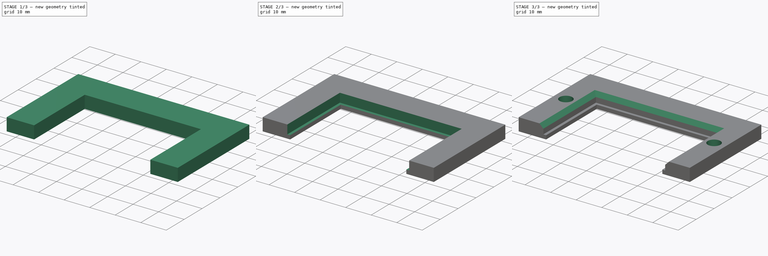
[diagram: build sequence overview — one tinted view per stage of 3, left to right]
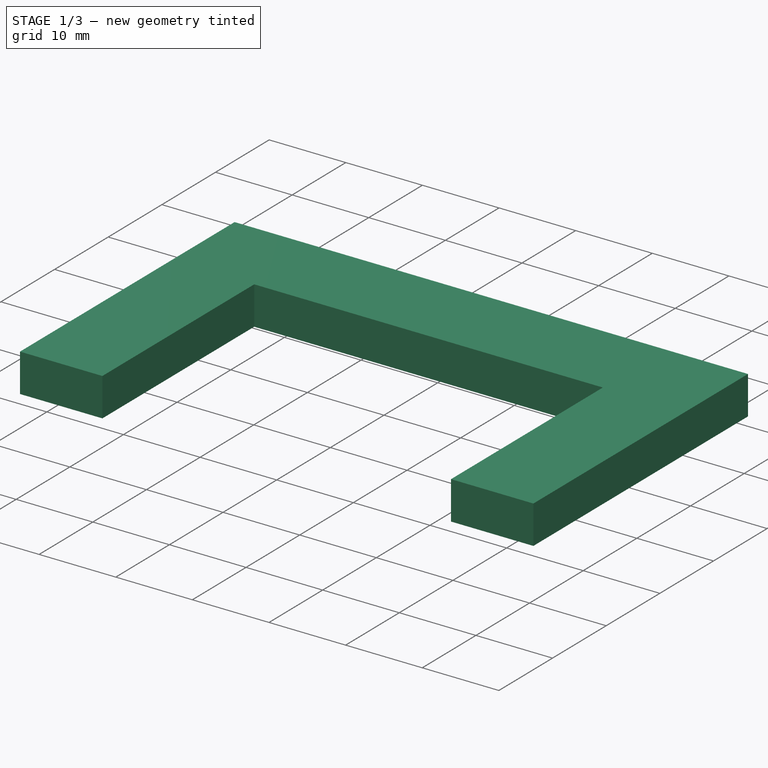
[diagram: stage 1 of 3 — iso view after this stage's code; geometry added in this stage tinted green]
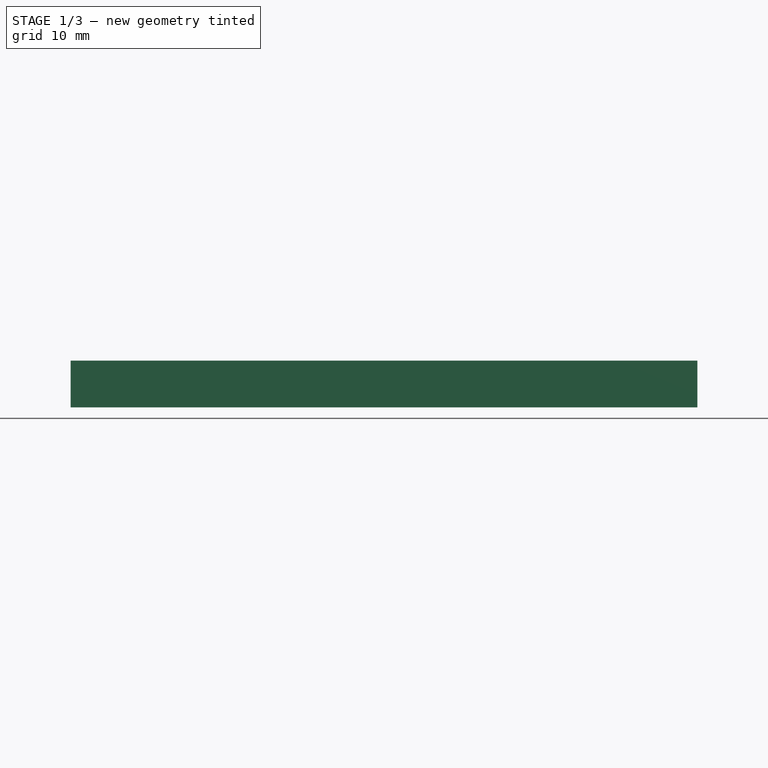
[diagram: stage 1 of 3 — front view after this stage's code; geometry added in this stage tinted green]
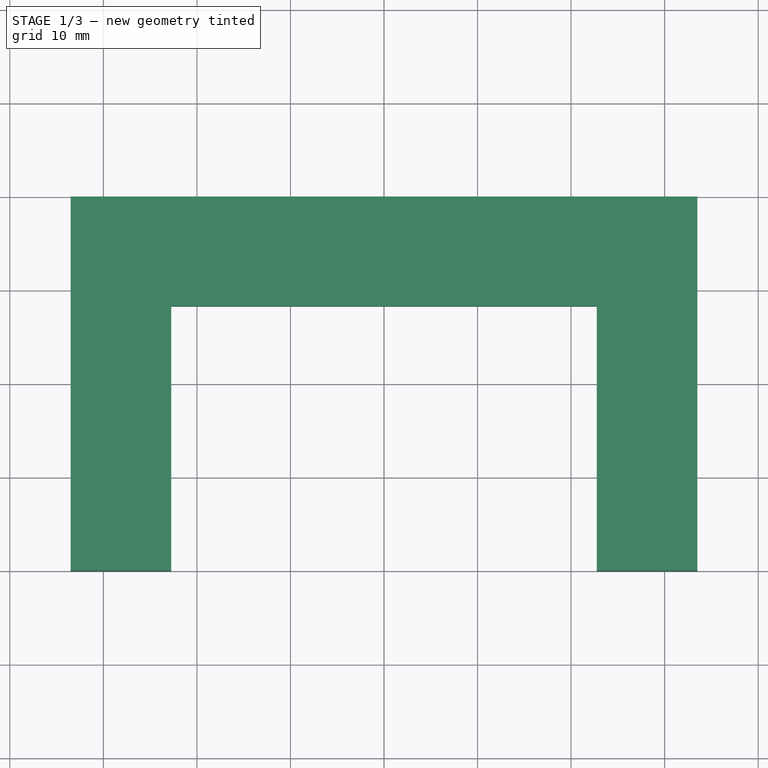
[diagram: stage 1 of 3 — top view after this stage's code; geometry added in this stage tinted green]
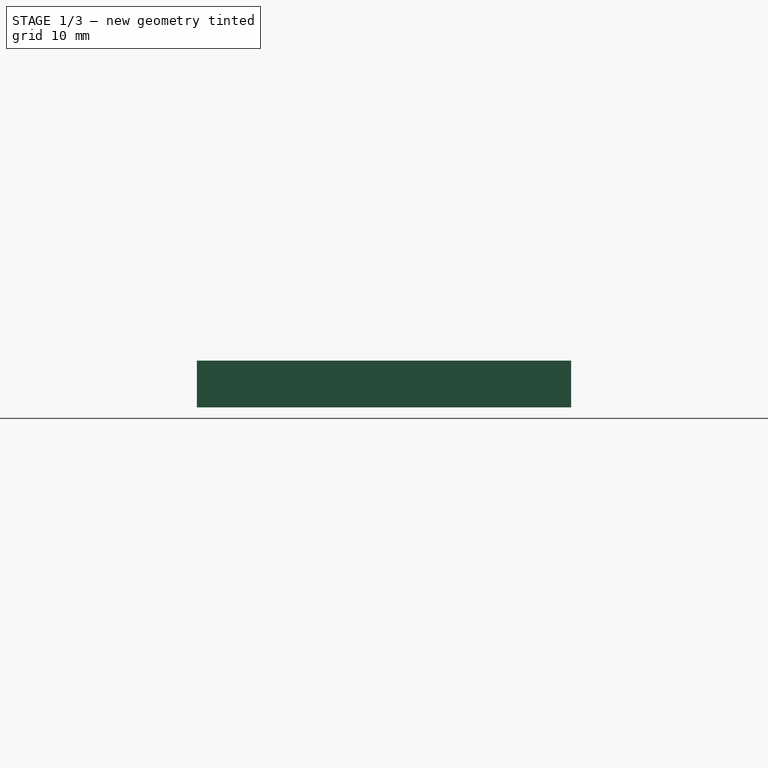
[diagram: stage 1 of 3 — right view after this stage's code; geometry added in this stage tinted green]
FCSTD DOCUMENT  (FreeCAD 0.22R34836 (Git))
Label: hygrometre
License: All rights reserved
LicenseURL: https://en.wikipedia.org/wiki/All_rights_reserved
objects: Sketcher::SketchObject×4, PartDesign::Pocket×3, PartDesign::Pad×1, PartDesign::Chamfer×1, PartDesign::Body×1
note: 15 computed .brp shape members not serialized (recipe doc carries the construction recipe); baked Part::Feature solids carry a one-line shape summary decoded from their .brp

FEATURE [Sketcher::SketchObject] Sketch
  FullyConstrained = true
  MapMode = 5
  Support = -> [XY_Plane]
  sketch-geometry (4):
    g0: LineSegment StartX=-33.5 StartY=20 StartZ=0 EndX=33.5 EndY=20 EndZ=0
    g1: LineSegment StartX=33.5 StartY=20 StartZ=0 EndX=33.5 EndY=-20 EndZ=0
    g2: LineSegment StartX=33.5 StartY=-20 StartZ=0 EndX=-33.5 EndY=-20 EndZ=0
    g3: LineSegment StartX=-33.5 StartY=-20 StartZ=0 EndX=-33.5 EndY=20 EndZ=0
  constraints (11):
    c: Coincident(g0,g1)
    c: Coincident(g1,g2)
    c: Coincident(g2,g3)
    c: Coincident(g3,g0)
    c: Horizontal(g0)
    c: Horizontal(g2)
    c: Vertical(g1)
    c: Vertical(g3)
    c: DistanceX(g2,g2) = 67
    c: DistanceY(g3,g3) = 40
    c: Symmetric(g0,g1,g-1)
FEATURE [PartDesign::Pad] Pad
  Direction = (0,0,1)
  Length = 5
  Length2 = 10
  Profile = -> Sketch
  ReferenceAxis = -> Sketch [N_Axis]
  Type = 0
FEATURE [Sketcher::SketchObject] Sketch001
  ExternalGeometry = -> [Pad]
  FullyConstrained = true
  MapMode = 5
  Placement = pos=(0,0,5) rot=(0,0,1;0rad)
  Support = -> [Pad]
  sketch-geometry (4):
    g0: LineSegment StartX=-22.75 StartY=-20 StartZ=0 EndX=22.75 EndY=-20 EndZ=0
    g1: LineSegment StartX=22.75 StartY=-20 StartZ=0 EndX=22.75 EndY=8.3 EndZ=0
    g2: LineSegment StartX=22.75 StartY=8.3 StartZ=0 EndX=-22.75 EndY=8.3 EndZ=0
    g3: LineSegment StartX=-22.75 StartY=8.3 StartZ=0 EndX=-22.75 EndY=-20 EndZ=0
  constraints (11):
    c: Coincident(g0,g1)
    c: Coincident(g1,g2)
    c: Coincident(g2,g3)
    c: Coincident(g3,g0)
    c: Horizontal(g0)
    c: Vertical(g1)
    c: Vertical(g3)
    c: PointOnObject(g0,g-3)
    c: DistanceX(g2,g2) = 45.5
    c: Symmetric(g2,g1,g-2)
    c: DistanceY(g3,g3) = 28.3
FEATURE [PartDesign::Pocket] Pocket
  BaseFeature = -> Pad
  Direction = (0,0,-1)
  Length = 5
  Length2 = 5
  Profile = -> Sketch001
  ReferenceAxis = -> Sketch001 [N_Axis]
  Type = 1
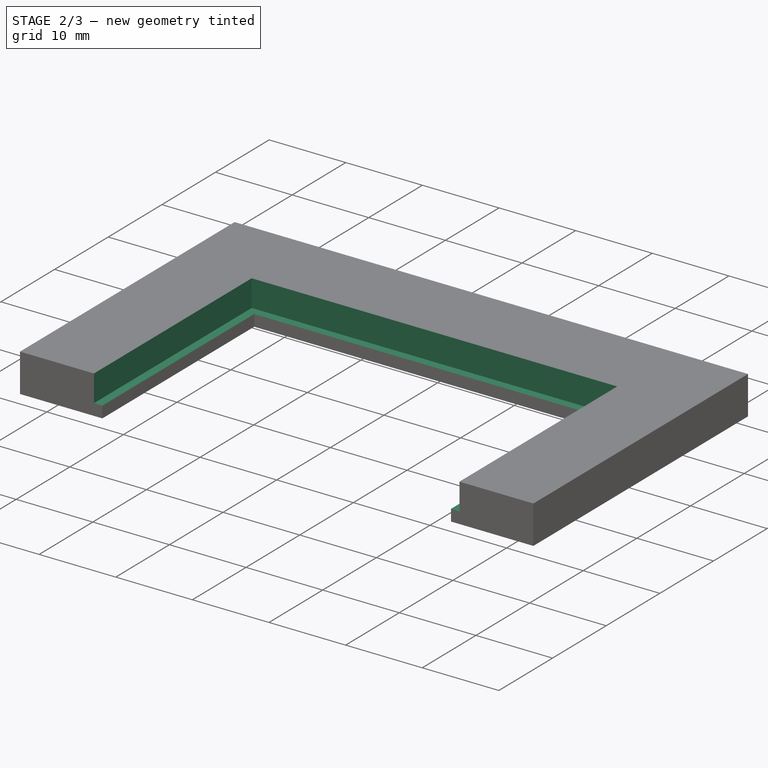
[diagram: stage 2 of 3 — iso view after this stage's code; geometry added in this stage tinted green]
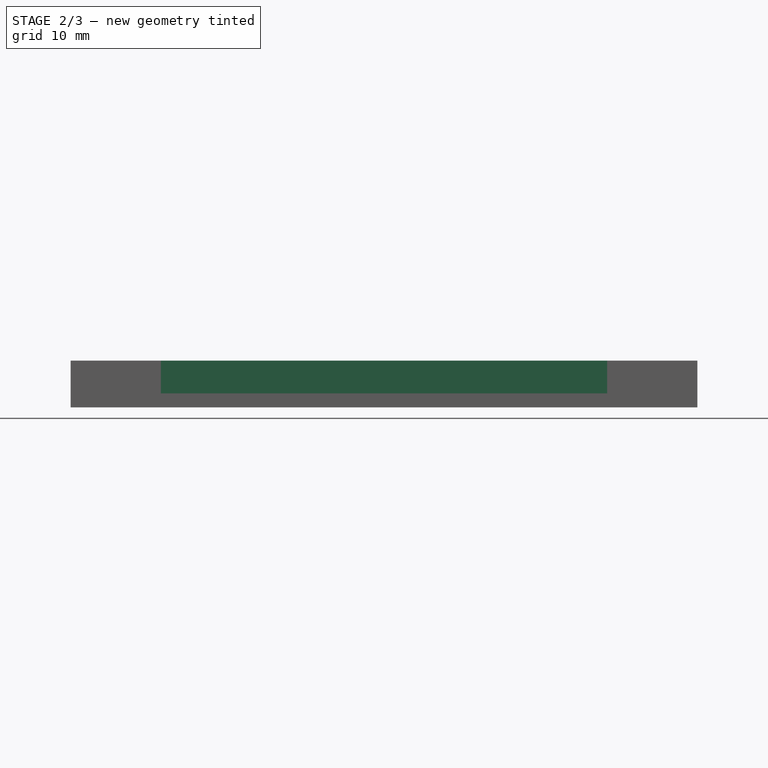
[diagram: stage 2 of 3 — front view after this stage's code; geometry added in this stage tinted green]
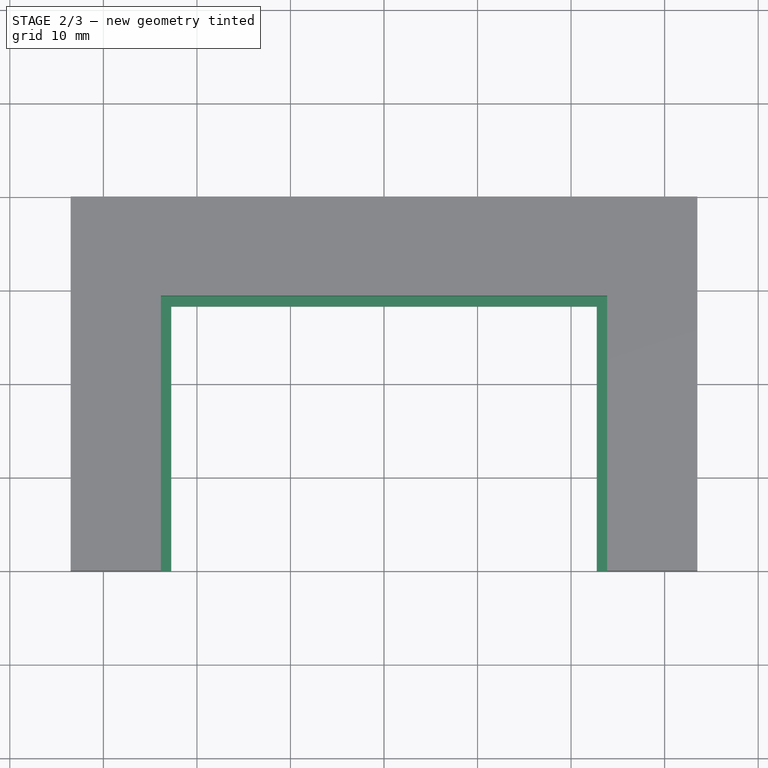
[diagram: stage 2 of 3 — top view after this stage's code; geometry added in this stage tinted green]
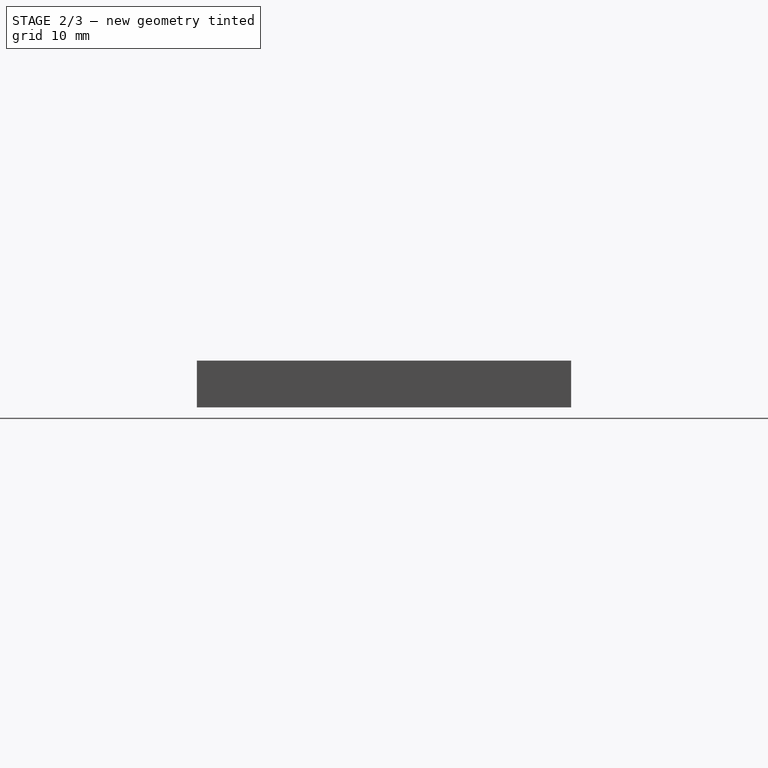
[diagram: stage 2 of 3 — right view after this stage's code; geometry added in this stage tinted green]
FEATURE [Sketcher::SketchObject] Sketch002
  ExternalGeometry = -> [Pocket]
  FullyConstrained = true
  MapMode = 5
  Placement = pos=(0,0,5) rot=(0,0,1;0rad)
  Support = -> [Pocket]
  sketch-geometry (5):
    g0: LineSegment StartX=-33.5 StartY=-20 StartZ=0 EndX=33.5 EndY=-20 EndZ=0
    g1: LineSegment StartX=-23.85 StartY=-20 StartZ=0 EndX=23.85 EndY=-20 EndZ=0
    g2: LineSegment StartX=23.85 StartY=-20 StartZ=0 EndX=23.85 EndY=9.4 EndZ=0
    g3: LineSegment StartX=23.85 StartY=9.4 StartZ=0 EndX=-23.85 EndY=9.4 EndZ=0
    g4: LineSegment StartX=-23.85 StartY=9.4 StartZ=0 EndX=-23.85 EndY=-20 EndZ=0
  constraints (13):
    c: Coincident(g0,g-4)
    c: Coincident(g0,g-3)
    c: Coincident(g1,g2)
    c: Coincident(g2,g3)
    c: Coincident(g3,g4)
    c: Coincident(g4,g1)
    c: Horizontal(g1)
    c: Vertical(g2)
    c: Vertical(g4)
    c: PointOnObject(g1,g0)
    c: Symmetric(g3,g2,g-2)
    c: DistanceX(g3,g3) = 47.7
    c: DistanceY(g4,g4) = 29.4
FEATURE [PartDesign::Pocket] Pocket001
  BaseFeature = -> Pocket
  Direction = (0,0,-1)
  Length = 3.5
  Length2 = 5
  Profile = -> Sketch002
  ReferenceAxis = -> Sketch002 [N_Axis]
  Type = 0
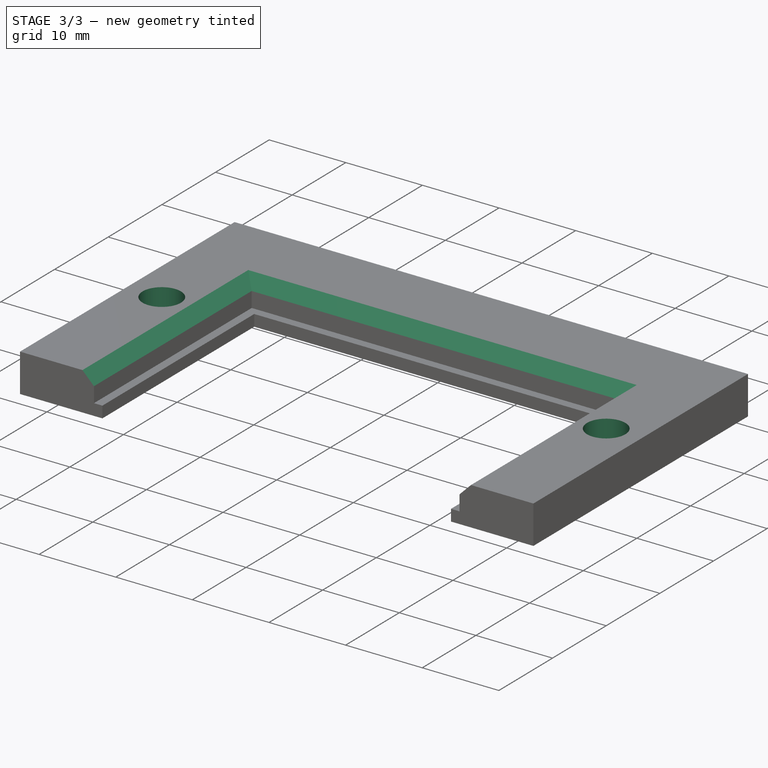
[diagram: stage 3 of 3 — iso view after this stage's code; geometry added in this stage tinted green]
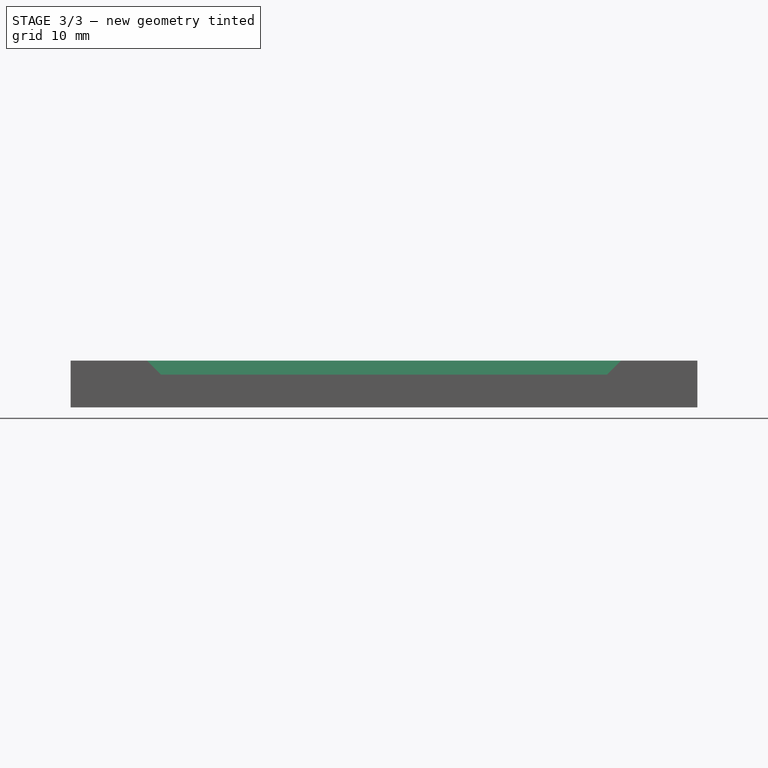
[diagram: stage 3 of 3 — front view after this stage's code; geometry added in this stage tinted green]
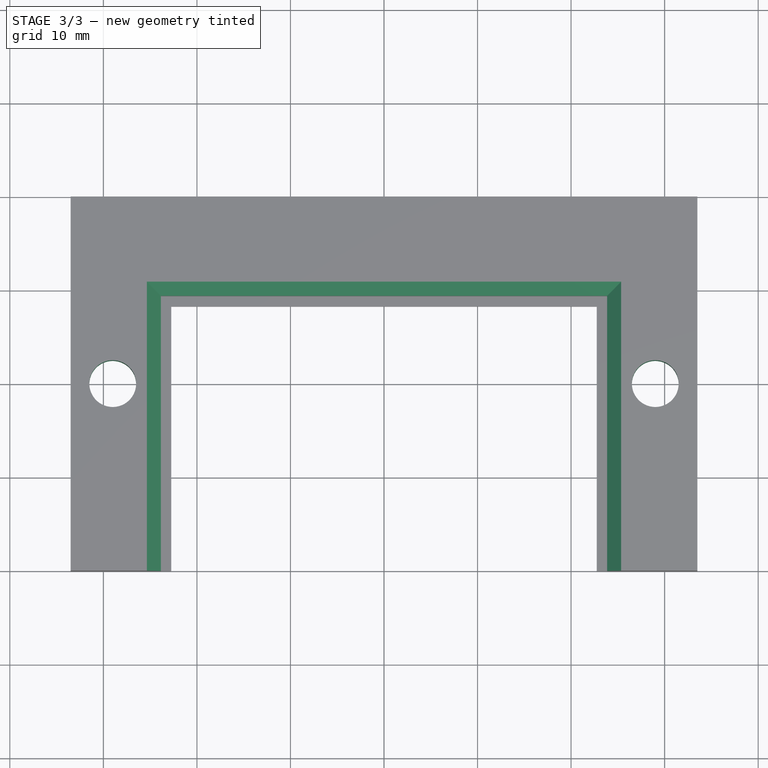
[diagram: stage 3 of 3 — top view after this stage's code; geometry added in this stage tinted green]
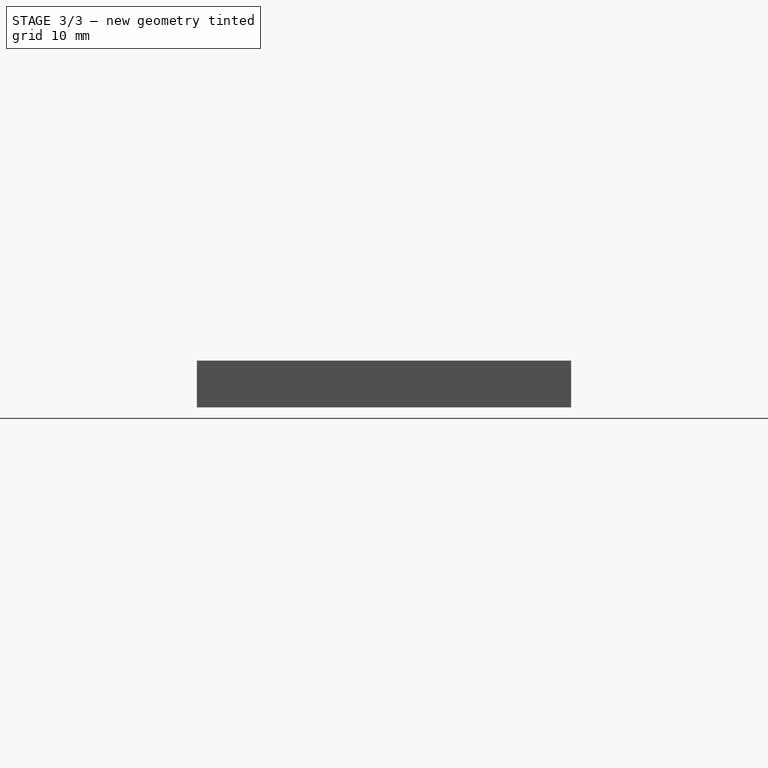
[diagram: stage 3 of 3 — right view after this stage's code; geometry added in this stage tinted green]
FEATURE [Sketcher::SketchObject] Sketch003
  ExternalGeometry = -> [Pocket001]
  FullyConstrained = true
  MapMode = 5
  Placement = pos=(0,0,5) rot=(0,0,1;0rad)
  Support = -> [Pocket001]
  sketch-geometry (2):
    g0: Circle CenterX=29 CenterY=0 CenterZ=0 NormalX=0 NormalY=0 NormalZ=1 AngleXU=0 Radius=2.5
    g1: Circle CenterX=-29 CenterY=0 CenterZ=0 NormalX=0 NormalY=0 NormalZ=1 AngleXU=0 Radius=2.5
  constraints (6):
    c: PointOnObject(g0,g-1)
    c: PointOnObject(g1,g-1)
    c: Diameter(g1) = 5
    c: Equal(g0,g1)
    c: DistanceX(g-3,g1) = 4.5
    c: DistanceX(g0,g-3) = 4.5
FEATURE [PartDesign::Pocket] Pocket002
  BaseFeature = -> Pocket001
  Direction = (0,0,-1)
  Length = 5
  Length2 = 5
  Profile = -> Sketch003
  ReferenceAxis = -> Sketch003 [N_Axis]
  Type = 1
FEATURE [PartDesign::Chamfer] Chamfer
  Angle = 45
  Base = -> Pocket002 [Edge22,Edge20,Edge21]
  BaseFeature = -> Pocket002
  ChamferType = 0
  FlipDirection = false
  Size = 1.5
  Size2 = 1
  SupportTransform = false
  UseAllEdges = false
FEATURE [PartDesign::Body] Body
  Group = -> [Sketch,Pad,Sketch001,Pocket,Sketch002,Pocket001,Sketch003,Pocket002,Chamfer]
  Origin = -> Origin
  Tip = -> Chamfer
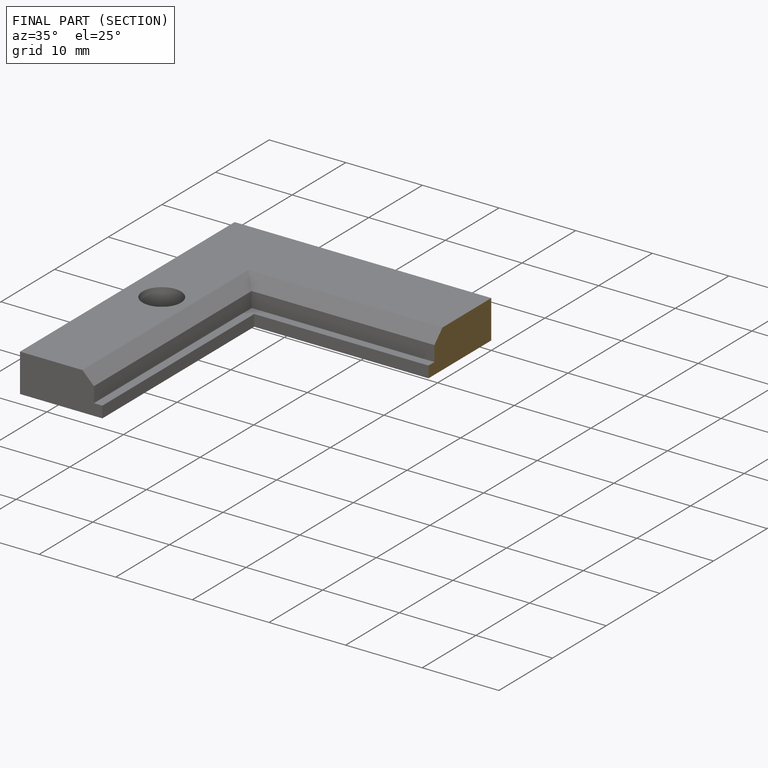
[diagram: finished part — half-section view (interior)]
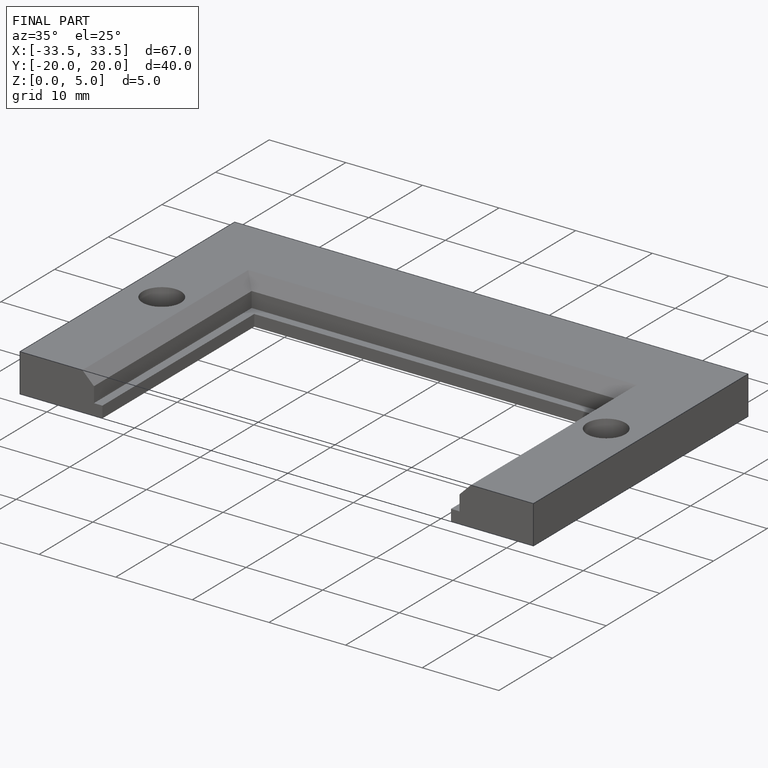
[diagram: finished part — iso view with bounding-box wireframe]
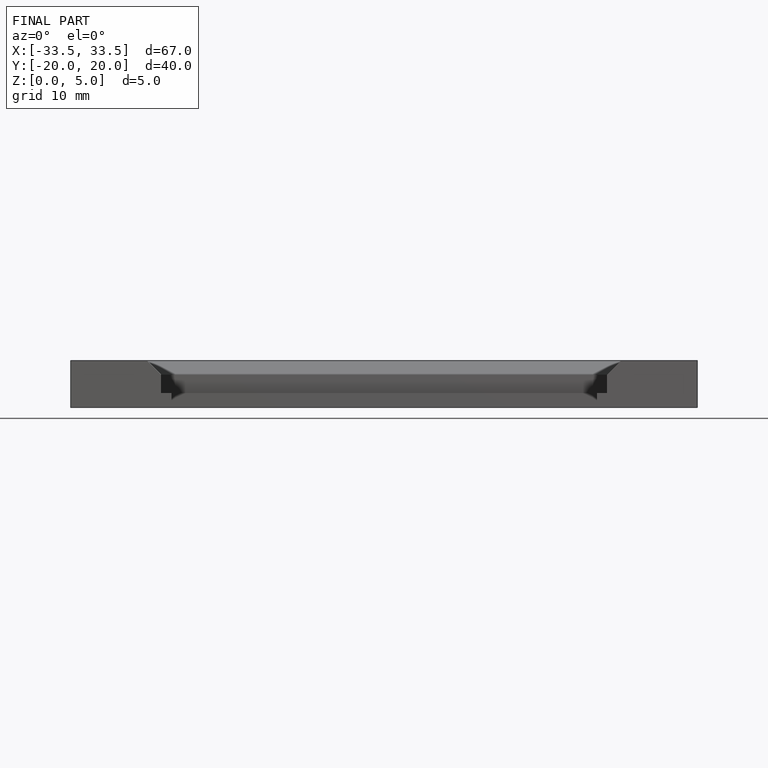
[diagram: finished part — front view with bounding-box wireframe]
